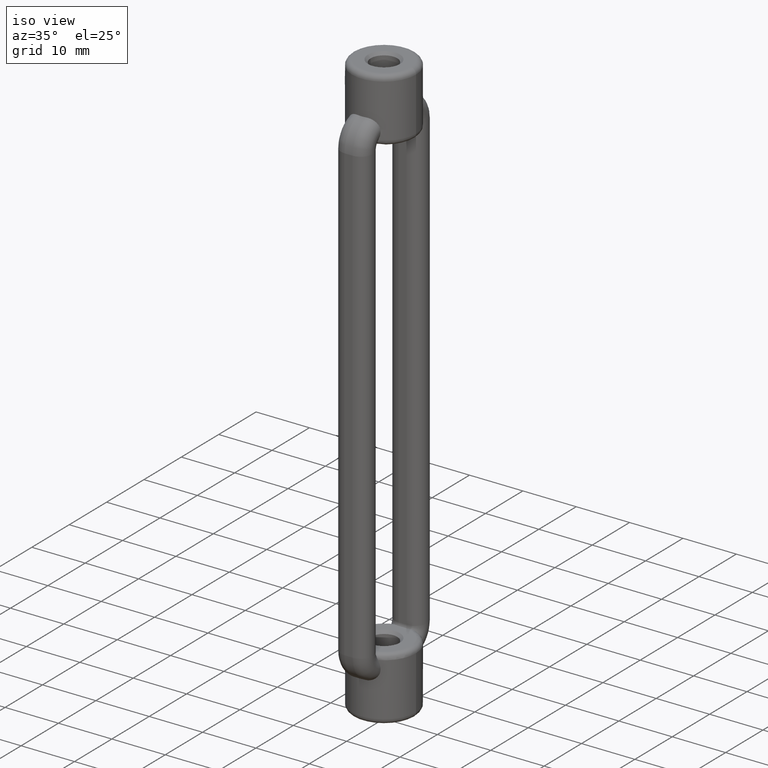
[diagram: clean part render]
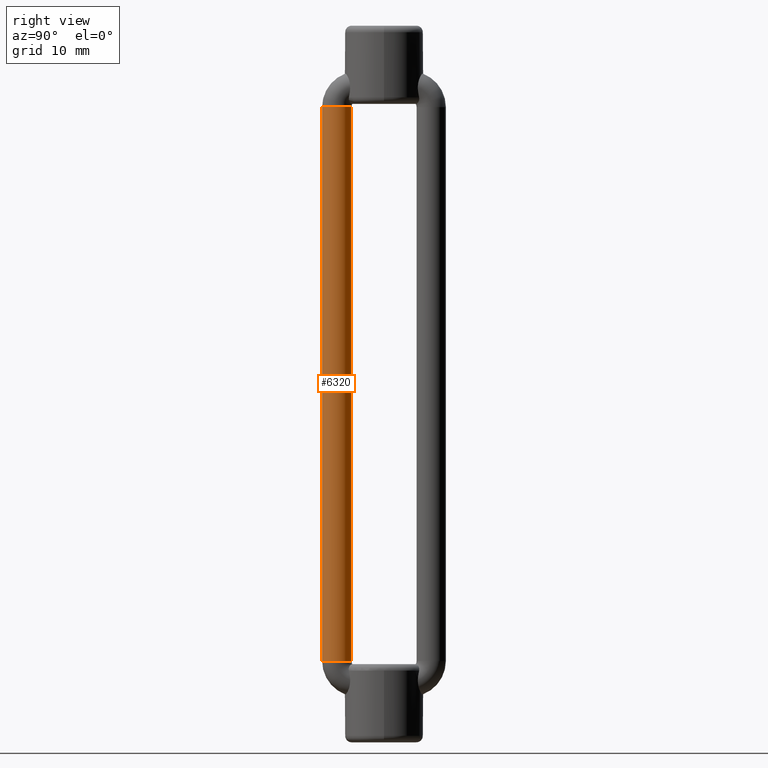
[diagram: tour spotlight — one face highlighted and labeled with its STEP entity id]
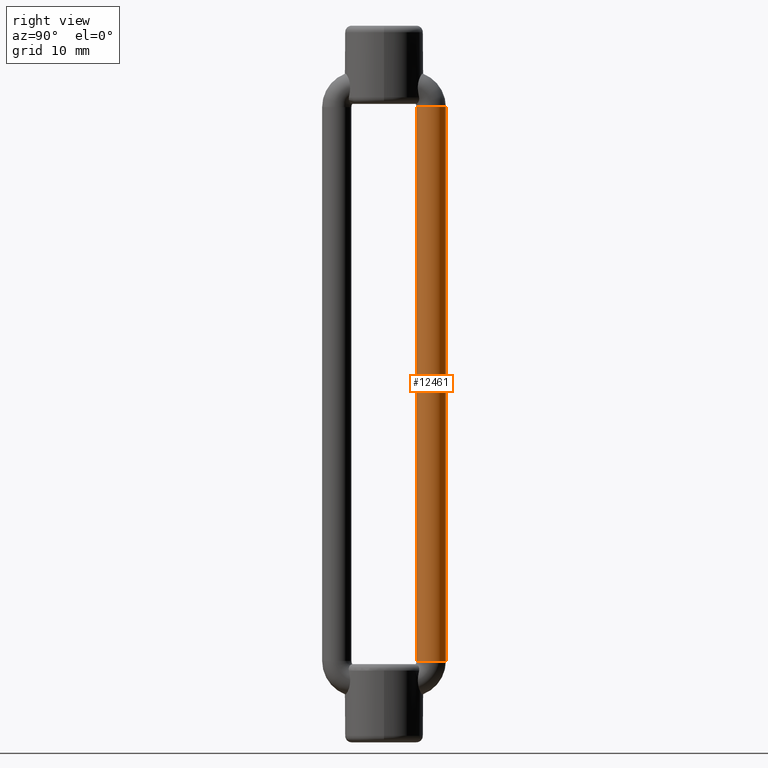
[diagram: tour spotlight — one face highlighted and labeled with its STEP entity id]
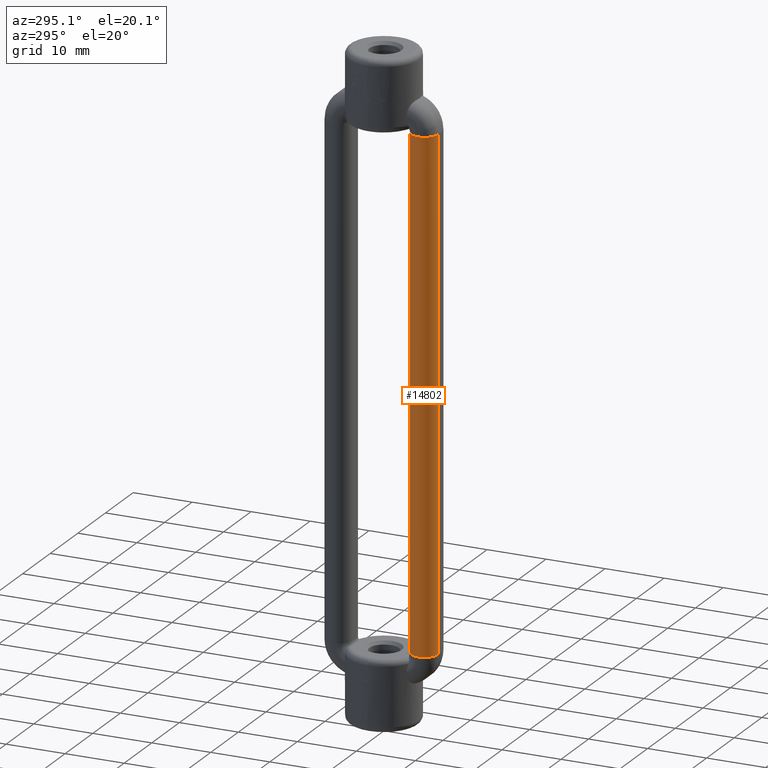
[diagram: tour spotlight — one face highlighted and labeled with its STEP entity id]
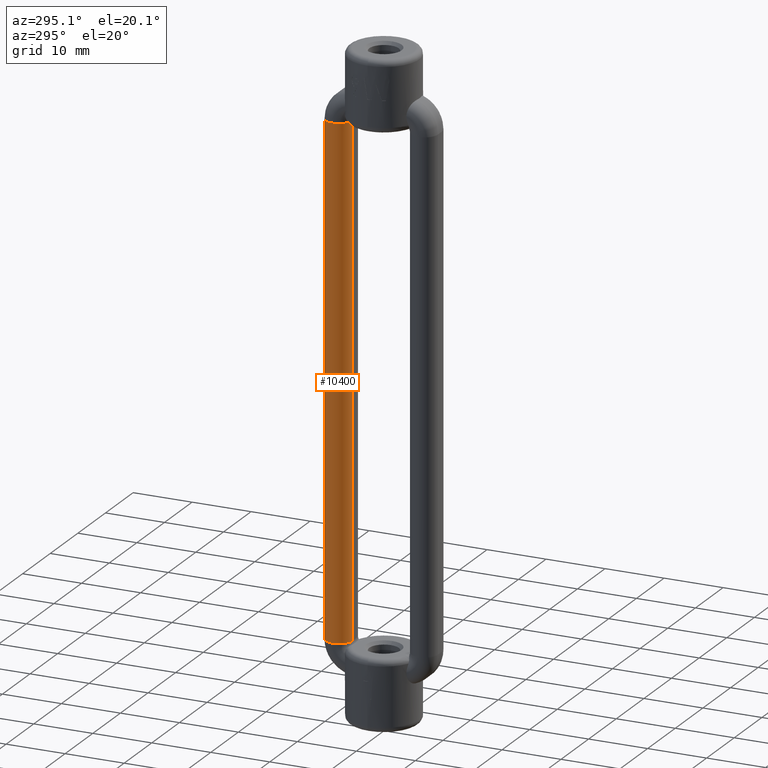
[diagram: tour spotlight — one face highlighted and labeled with its STEP entity id]
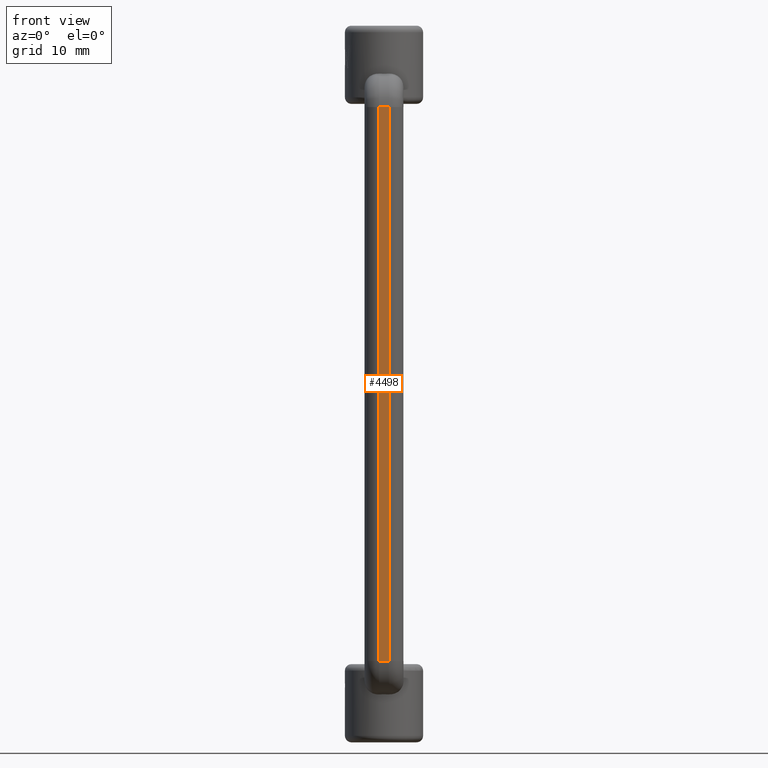
[diagram: tour spotlight — one face highlighted and labeled with its STEP entity id]
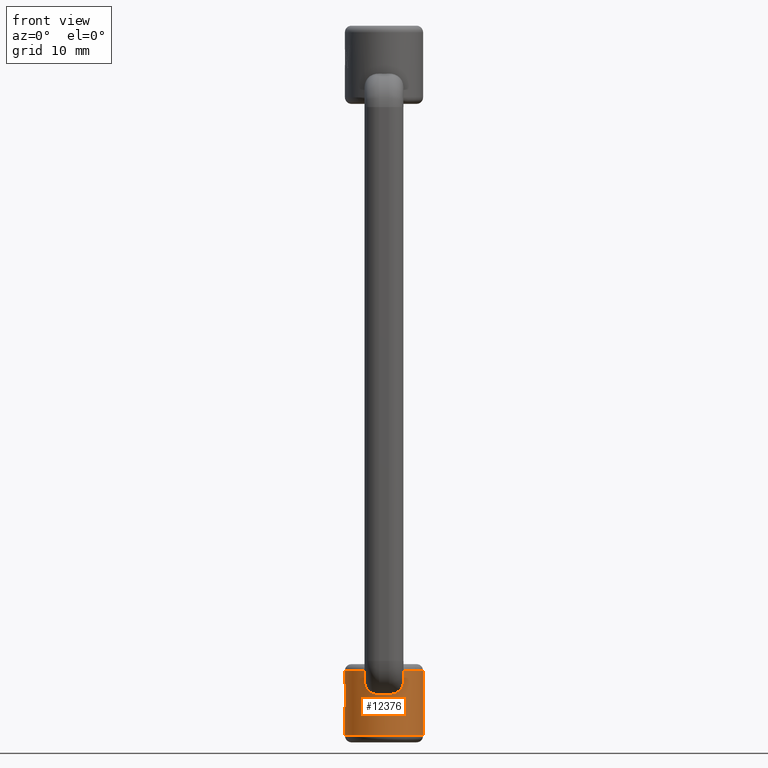
[diagram: tour spotlight — one face highlighted and labeled with its STEP entity id]
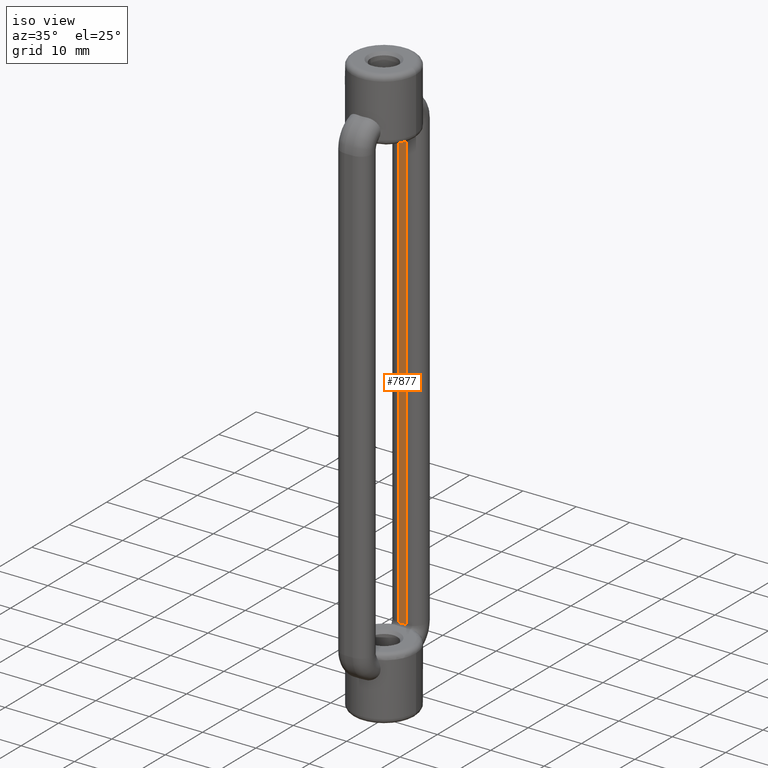
[diagram: tour spotlight — one face highlighted and labeled with its STEP entity id]
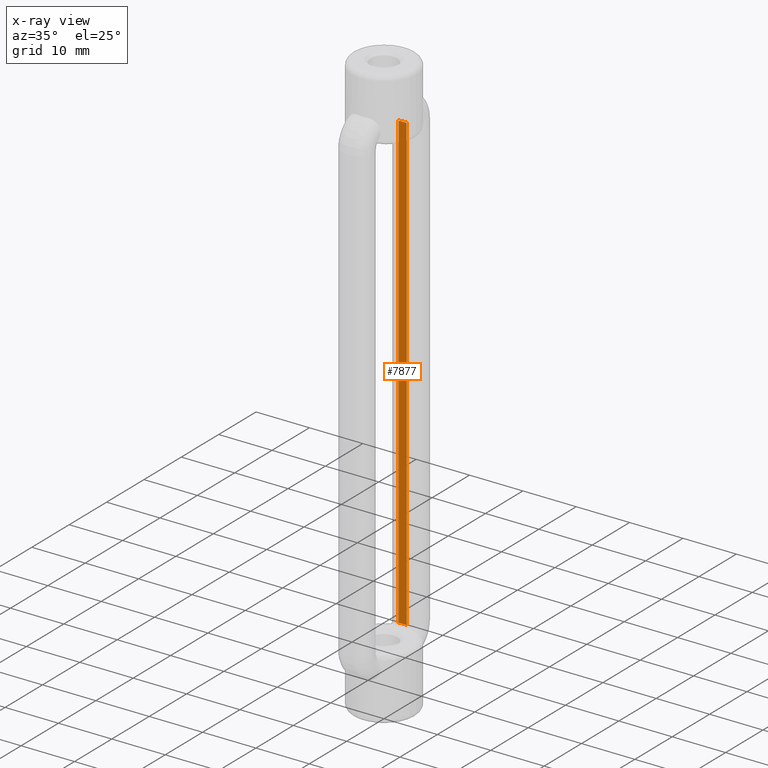
[diagram: x-ray of the same camera — body ghosted, this tour face saturated]
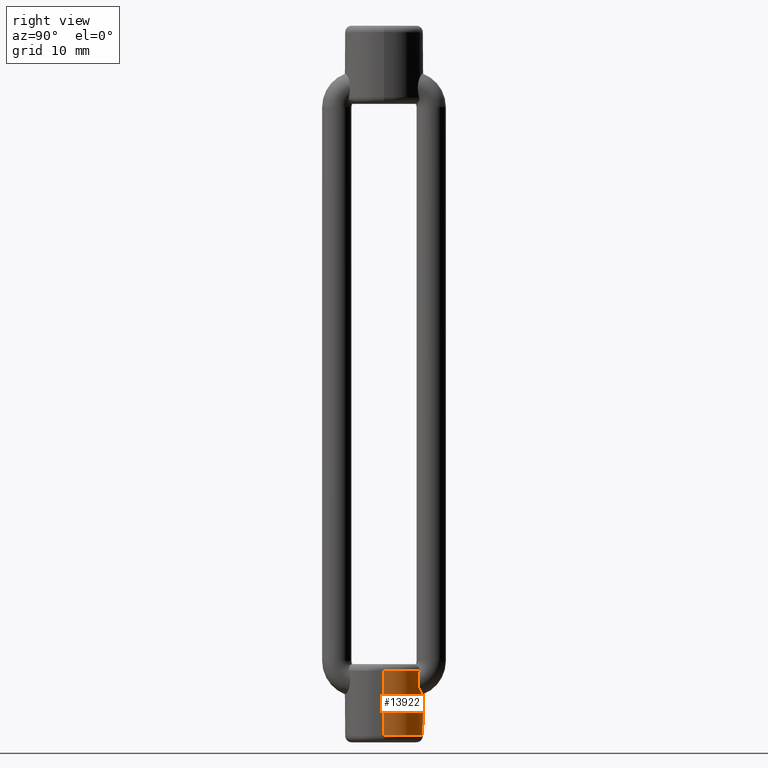
[diagram: tour spotlight — one face highlighted and labeled with its STEP entity id]
A machine part: a face-by-face anatomy tour. The part has 307 B-rep faces; the first image is the clean iso view, then the 8 largest visible faces are spotlighted one at a time (largest first), each with its STEP entity span.

Face 1 — right view, entity #6320. In plain terms, the highlighted cylindrical surface (edge-blend (fillet) strip) has radius 2.25 mm, axis along (0, -0, -1).
Definition (entity closure, byte-faithful):
#143 = CARTESIAN_POINT ( 'NONE',  ( 0.7499999999999981100, -7.249999999999999100, 42.49999999999998600 ) ) ;
#219 = EDGE_CURVE ( 'NONE', #14377, #6254, #14173, .T. ) ;
#794 = CARTESIAN_POINT ( 'NONE',  ( 0.7499999999999981100, -9.500000000000001800, 42.49999999999998600 ) ) ;
#992 = DIRECTION ( 'NONE',  ( -0.0000000000000000000, 6.123233995736766000E-017, 1.000000000000000000 ) ) ;
#1090 = VERTEX_POINT ( 'NONE', #2049 ) ;
#1890 = CYLINDRICAL_SURFACE ( 'NONE', #15177, 2.250000000000001800 ) ;
#2049 = CARTESIAN_POINT ( 'NONE',  ( 0.7499999999999981100, -9.500000000000001800, -42.50000000000001400 ) ) ;
#2493 = CIRCLE ( 'NONE', #16723, 2.250000000000001800 ) ;
#2561 = CARTESIAN_POINT ( 'NONE',  ( 0.7499999999999981100, -4.999999999999997300, 42.49999999999998600 ) ) ;
#2956 = CARTESIAN_POINT ( 'NONE',  ( 0.7499999999999981100, -9.500000000000001800, 42.49999999999998600 ) ) ;
#3449 = CARTESIAN_POINT ( 'NONE',  ( 0.7499999999999981100, -4.999999999999997300, 42.49999999999998600 ) ) ;
#3880 = ORIENTED_EDGE ( 'NONE', *, *, #5292, .T. ) ;
#4096 = CARTESIAN_POINT ( 'NONE',  ( 0.7499999999999981100, -7.249999999999999100, 42.49999999999998600 ) ) ;
#4803 = VECTOR ( 'NONE', #15546, 1000.000000000000000 ) ;
#5164 = AXIS2_PLACEMENT_3D ( 'NONE', #7775, #992, #9009 ) ;
#5292 = EDGE_CURVE ( 'NONE', #6303, #1090, #7451, .T. ) ;
#5465 = CIRCLE ( 'NONE', #5164, 2.250000000000001300 ) ;
#5547 = ORIENTED_EDGE ( 'NONE', *, *, #7184, .F. ) ;
#6139 = VECTOR ( 'NONE', #16585, 1000.000000000000000 ) ;
#6254 = VERTEX_POINT ( 'NONE', #16137 ) ;
#6303 = VERTEX_POINT ( 'NONE', #2956 ) ;
#6320 = ADVANCED_FACE ( 'NONE', ( #12594 ), #1890, .T. ) ;
#7184 = EDGE_CURVE ( 'NONE', #6303, #14377, #2493, .T. ) ;
#7451 = LINE ( 'NONE', #794, #4803 ) ;
#7775 = CARTESIAN_POINT ( 'NONE',  ( 0.7499999999999981100, -7.250000000000000000, -42.50000000000001400 ) ) ;
#9009 = DIRECTION ( 'NONE',  ( 0.0000000000000000000, -1.000000000000000000, 0.0000000000000000000 ) ) ;
#9293 = DIRECTION ( 'NONE',  ( 0.0000000000000000000, -1.020425574104004100E-017, -1.000000000000000000 ) ) ;
#9355 = DIRECTION ( 'NONE',  ( 0.0000000000000000000, 1.000000000000000000, 0.0000000000000000000 ) ) ;
#10760 = EDGE_CURVE ( 'NONE', #1090, #6254, #5465, .T. ) ;
#11179 = EDGE_LOOP ( 'NONE', ( #5547, #3880, #14057, #15784 ) ) ;
#12594 = FACE_OUTER_BOUND ( 'NONE', #11179, .T. ) ;
#14057 = ORIENTED_EDGE ( 'NONE', *, *, #10760, .T. ) ;
#14173 = LINE ( 'NONE', #3449, #6139 ) ;
#14377 = VERTEX_POINT ( 'NONE', #2561 ) ;
#14405 = DIRECTION ( 'NONE',  ( -0.0000000000000000000, 6.123233995736766000E-017, 1.000000000000000000 ) ) ;
#15177 = AXIS2_PLACEMENT_3D ( 'NONE', #143, #9293, #9355 ) ;
#15546 = DIRECTION ( 'NONE',  ( 0.0000000000000000000, -1.020425574104004100E-017, -1.000000000000000000 ) ) ;
#15784 = ORIENTED_EDGE ( 'NONE', *, *, #219, .F. ) ;
#15898 = DIRECTION ( 'NONE',  ( 0.0000000000000000000, -1.000000000000000000, 0.0000000000000000000 ) ) ;
#16137 = CARTESIAN_POINT ( 'NONE',  ( 0.7499999999999981100, -4.999999999999998200, -42.50000000000001400 ) ) ;
#16585 = DIRECTION ( 'NONE',  ( 0.0000000000000000000, -1.020425574104004100E-017, -1.000000000000000000 ) ) ;
#16723 = AXIS2_PLACEMENT_3D ( 'NONE', #4096, #14405, #15898 ) ;

Face 2 — right view, entity #12461. In plain terms, the highlighted cylindrical surface (edge-blend (fillet) strip) has radius 2.25 mm, axis along (0, 0, -1).
Definition (entity closure, byte-faithful):
#499 = EDGE_CURVE ( 'NONE', #9583, #5878, #15202, .T. ) ;
#752 = DIRECTION ( 'NONE',  ( 0.0000000000000000000, 1.000000000000000000, 0.0000000000000000000 ) ) ;
#1118 = EDGE_LOOP ( 'NONE', ( #4959, #8501, #14960, #11738 ) ) ;
#1720 = CIRCLE ( 'NONE', #16198, 2.250000000000001300 ) ;
#2112 = VERTEX_POINT ( 'NONE', #13164 ) ;
#2143 = CARTESIAN_POINT ( 'NONE',  ( 0.7499999999999981100, 4.999999999999997300, 42.49999999999998600 ) ) ;
#3188 = VECTOR ( 'NONE', #12820, 1000.000000000000000 ) ;
#3803 = LINE ( 'NONE', #12707, #3188 ) ;
#4051 = CARTESIAN_POINT ( 'NONE',  ( 0.7499999999999981100, 7.249999999999999100, 42.49999999999998600 ) ) ;
#4162 = DIRECTION ( 'NONE',  ( 0.0000000000000000000, 1.000000000000000000, 0.0000000000000000000 ) ) ;
#4210 = CARTESIAN_POINT ( 'NONE',  ( 0.7499999999999981100, 4.999999999999997300, 42.49999999999998600 ) ) ;
#4694 = DIRECTION ( 'NONE',  ( 0.0000000000000000000, 1.020425574104004100E-017, -1.000000000000000000 ) ) ;
#4959 = ORIENTED_EDGE ( 'NONE', *, *, #499, .T. ) ;
#5029 = FACE_OUTER_BOUND ( 'NONE', #1118, .T. ) ;
#5415 = LINE ( 'NONE', #4210, #13860 ) ;
#5878 = VERTEX_POINT ( 'NONE', #2143 ) ;
#6850 = DIRECTION ( 'NONE',  ( 0.0000000000000000000, 6.123233995736766000E-017, -1.000000000000000000 ) ) ;
#7141 = AXIS2_PLACEMENT_3D ( 'NONE', #12547, #4694, #752 ) ;
#8123 = DIRECTION ( 'NONE',  ( 0.0000000000000000000, 6.123233995736766000E-017, -1.000000000000000000 ) ) ;
#8181 = DIRECTION ( 'NONE',  ( 0.0000000000000000000, 1.000000000000000000, 0.0000000000000000000 ) ) ;
#8501 = ORIENTED_EDGE ( 'NONE', *, *, #13271, .T. ) ;
#9583 = VERTEX_POINT ( 'NONE', #12779 ) ;
#9760 = CYLINDRICAL_SURFACE ( 'NONE', #7141, 2.250000000000001800 ) ;
#11410 = EDGE_CURVE ( 'NONE', #9583, #12979, #3803, .T. ) ;
#11738 = ORIENTED_EDGE ( 'NONE', *, *, #11410, .F. ) ;
#11913 = CARTESIAN_POINT ( 'NONE',  ( 0.7499999999999981100, 7.250000000000000000, -42.50000000000001400 ) ) ;
#12160 = AXIS2_PLACEMENT_3D ( 'NONE', #4051, #8123, #8181 ) ;
#12247 = EDGE_CURVE ( 'NONE', #12979, #2112, #1720, .T. ) ;
#12461 = ADVANCED_FACE ( 'NONE', ( #5029 ), #9760, .T. ) ;
#12547 = CARTESIAN_POINT ( 'NONE',  ( 0.7499999999999981100, 7.249999999999999100, 42.49999999999998600 ) ) ;
#12707 = CARTESIAN_POINT ( 'NONE',  ( 0.7499999999999981100, 9.500000000000001800, 42.49999999999998600 ) ) ;
#12779 = CARTESIAN_POINT ( 'NONE',  ( 0.7499999999999981100, 9.500000000000001800, 42.49999999999998600 ) ) ;
#12820 = DIRECTION ( 'NONE',  ( 0.0000000000000000000, 1.020425574104004100E-017, -1.000000000000000000 ) ) ;
#12979 = VERTEX_POINT ( 'NONE', #14288 ) ;
#13164 = CARTESIAN_POINT ( 'NONE',  ( 0.7499999999999981100, 4.999999999999998200, -42.50000000000001400 ) ) ;
#13271 = EDGE_CURVE ( 'NONE', #5878, #2112, #5415, .T. ) ;
#13860 = VECTOR ( 'NONE', #14737, 1000.000000000000000 ) ;
#14288 = CARTESIAN_POINT ( 'NONE',  ( 0.7499999999999981100, 9.500000000000001800, -42.50000000000001400 ) ) ;
#14737 = DIRECTION ( 'NONE',  ( 0.0000000000000000000, 1.020425574104004100E-017, -1.000000000000000000 ) ) ;
#14960 = ORIENTED_EDGE ( 'NONE', *, *, #12247, .F. ) ;
#15202 = CIRCLE ( 'NONE', #12160, 2.250000000000001800 ) ;
#16198 = AXIS2_PLACEMENT_3D ( 'NONE', #11913, #6850, #4162 ) ;

Face 3 — auxiliary view, entity #14802. In plain terms, the highlighted cylindrical surface (edge-blend (fillet) strip) has radius 2.25 mm, axis along (0, -0, -1).
Definition (entity closure, byte-faithful):
#91 = AXIS2_PLACEMENT_3D ( 'NONE', #14438, #5183, #1142 ) ;
#250 = DIRECTION ( 'NONE',  ( -0.0000000000000000000, 6.123233995736766000E-017, 1.000000000000000000 ) ) ;
#750 = EDGE_CURVE ( 'NONE', #2647, #10146, #5736, .T. ) ;
#1142 = DIRECTION ( 'NONE',  ( 0.0000000000000000000, -1.000000000000000000, 0.0000000000000000000 ) ) ;
#1306 = CARTESIAN_POINT ( 'NONE',  ( -0.7499999999999981100, -9.500000000000001800, 42.49999999999998600 ) ) ;
#1499 = CARTESIAN_POINT ( 'NONE',  ( -0.7499999999999981100, -4.999999999999997300, 42.49999999999998600 ) ) ;
#1647 = ORIENTED_EDGE ( 'NONE', *, *, #14543, .T. ) ;
#2370 = DIRECTION ( 'NONE',  ( 0.0000000000000000000, 1.000000000000000000, 0.0000000000000000000 ) ) ;
#2647 = VERTEX_POINT ( 'NONE', #1306 ) ;
#2685 = CARTESIAN_POINT ( 'NONE',  ( -0.7499999999999981100, -4.999999999999997300, 42.49999999999998600 ) ) ;
#3927 = EDGE_LOOP ( 'NONE', ( #12730, #7658, #1647, #4580 ) ) ;
#3998 = DIRECTION ( 'NONE',  ( 0.0000000000000000000, -1.000000000000000000, 0.0000000000000000000 ) ) ;
#4158 = CYLINDRICAL_SURFACE ( 'NONE', #14994, 2.250000000000001800 ) ;
#4580 = ORIENTED_EDGE ( 'NONE', *, *, #750, .F. ) ;
#5183 = DIRECTION ( 'NONE',  ( -0.0000000000000000000, 6.123233995736766000E-017, 1.000000000000000000 ) ) ;
#5506 = AXIS2_PLACEMENT_3D ( 'NONE', #8128, #250, #3998 ) ;
#5736 = LINE ( 'NONE', #7699, #12317 ) ;
#6407 = VECTOR ( 'NONE', #8231, 1000.000000000000000 ) ;
#6503 = DIRECTION ( 'NONE',  ( 0.0000000000000000000, -1.020425574104004100E-017, -1.000000000000000000 ) ) ;
#7254 = EDGE_CURVE ( 'NONE', #10513, #7867, #9915, .T. ) ;
#7658 = ORIENTED_EDGE ( 'NONE', *, *, #7254, .T. ) ;
#7699 = CARTESIAN_POINT ( 'NONE',  ( -0.7499999999999981100, -9.500000000000001800, 42.49999999999998600 ) ) ;
#7867 = VERTEX_POINT ( 'NONE', #12195 ) ;
#8128 = CARTESIAN_POINT ( 'NONE',  ( -0.7499999999999981100, -7.250000000000000000, -42.50000000000001400 ) ) ;
#8231 = DIRECTION ( 'NONE',  ( 0.0000000000000000000, -1.020425574104004100E-017, -1.000000000000000000 ) ) ;
#9915 = LINE ( 'NONE', #1499, #6407 ) ;
#10146 = VERTEX_POINT ( 'NONE', #16577 ) ;
#10513 = VERTEX_POINT ( 'NONE', #2685 ) ;
#11334 = EDGE_CURVE ( 'NONE', #10513, #2647, #13674, .T. ) ;
#12195 = CARTESIAN_POINT ( 'NONE',  ( -0.7499999999999981100, -4.999999999999998200, -42.50000000000001400 ) ) ;
#12317 = VECTOR ( 'NONE', #6503, 1000.000000000000000 ) ;
#12730 = ORIENTED_EDGE ( 'NONE', *, *, #11334, .F. ) ;
#12796 = FACE_OUTER_BOUND ( 'NONE', #3927, .T. ) ;
#13674 = CIRCLE ( 'NONE', #91, 2.250000000000001800 ) ;
#14233 = CARTESIAN_POINT ( 'NONE',  ( -0.7499999999999981100, -7.249999999999999100, 42.49999999999998600 ) ) ;
#14438 = CARTESIAN_POINT ( 'NONE',  ( -0.7499999999999981100, -7.249999999999999100, 42.49999999999998600 ) ) ;
#14543 = EDGE_CURVE ( 'NONE', #7867, #10146, #16715, .T. ) ;
#14802 = ADVANCED_FACE ( 'NONE', ( #12796 ), #4158, .T. ) ;
#14994 = AXIS2_PLACEMENT_3D ( 'NONE', #14233, #16763, #2370 ) ;
#16577 = CARTESIAN_POINT ( 'NONE',  ( -0.7499999999999981100, -9.500000000000001800, -42.50000000000001400 ) ) ;
#16715 = CIRCLE ( 'NONE', #5506, 2.250000000000001300 ) ;
#16763 = DIRECTION ( 'NONE',  ( 0.0000000000000000000, -1.020425574104004100E-017, -1.000000000000000000 ) ) ;

Face 4 — auxiliary view, entity #10400. In plain terms, the highlighted cylindrical surface (edge-blend (fillet) strip) has radius 2.25 mm, axis along (0, 0, -1).
Definition (entity closure, byte-faithful):
#1041 = ORIENTED_EDGE ( 'NONE', *, *, #10323, .T. ) ;
#1104 = CARTESIAN_POINT ( 'NONE',  ( -0.7499999999999981100, 4.999999999999997300, 42.49999999999998600 ) ) ;
#2215 = DIRECTION ( 'NONE',  ( 0.0000000000000000000, 1.000000000000000000, 0.0000000000000000000 ) ) ;
#2487 = DIRECTION ( 'NONE',  ( 0.0000000000000000000, 1.020425574104004100E-017, -1.000000000000000000 ) ) ;
#3254 = VERTEX_POINT ( 'NONE', #15789 ) ;
#3629 = EDGE_CURVE ( 'NONE', #8157, #8414, #5230, .T. ) ;
#3943 = AXIS2_PLACEMENT_3D ( 'NONE', #6262, #12996, #15470 ) ;
#4641 = LINE ( 'NONE', #1104, #16561 ) ;
#5230 = LINE ( 'NONE', #9773, #7879 ) ;
#5233 = DIRECTION ( 'NONE',  ( 0.0000000000000000000, 1.000000000000000000, 0.0000000000000000000 ) ) ;
#5664 = CIRCLE ( 'NONE', #3943, 2.250000000000001800 ) ;
#6185 = DIRECTION ( 'NONE',  ( 0.0000000000000000000, 6.123233995736766000E-017, -1.000000000000000000 ) ) ;
#6262 = CARTESIAN_POINT ( 'NONE',  ( -0.7499999999999981100, 7.249999999999999100, 42.49999999999998600 ) ) ;
#6876 = CARTESIAN_POINT ( 'NONE',  ( -0.7499999999999981100, 9.500000000000001800, -42.50000000000001400 ) ) ;
#7005 = EDGE_LOOP ( 'NONE', ( #1041, #9429, #12101, #14468 ) ) ;
#7879 = VECTOR ( 'NONE', #15133, 1000.000000000000000 ) ;
#8122 = CYLINDRICAL_SURFACE ( 'NONE', #16407, 2.250000000000001800 ) ;
#8157 = VERTEX_POINT ( 'NONE', #15198 ) ;
#8414 = VERTEX_POINT ( 'NONE', #6876 ) ;
#8530 = CARTESIAN_POINT ( 'NONE',  ( -0.7499999999999981100, 4.999999999999998200, -42.50000000000001400 ) ) ;
#8756 = CIRCLE ( 'NONE', #12026, 2.250000000000001300 ) ;
#9380 = FACE_OUTER_BOUND ( 'NONE', #7005, .T. ) ;
#9429 = ORIENTED_EDGE ( 'NONE', *, *, #3629, .T. ) ;
#9773 = CARTESIAN_POINT ( 'NONE',  ( -0.7499999999999981100, 9.500000000000001800, 42.49999999999998600 ) ) ;
#10088 = CARTESIAN_POINT ( 'NONE',  ( -0.7499999999999981100, 7.250000000000000000, -42.50000000000001400 ) ) ;
#10323 = EDGE_CURVE ( 'NONE', #3254, #8157, #5664, .T. ) ;
#10400 = ADVANCED_FACE ( 'NONE', ( #9380 ), #8122, .T. ) ;
#11135 = EDGE_CURVE ( 'NONE', #3254, #12822, #4641, .T. ) ;
#12026 = AXIS2_PLACEMENT_3D ( 'NONE', #10088, #6185, #2215 ) ;
#12101 = ORIENTED_EDGE ( 'NONE', *, *, #17004, .F. ) ;
#12822 = VERTEX_POINT ( 'NONE', #8530 ) ;
#12996 = DIRECTION ( 'NONE',  ( 0.0000000000000000000, 6.123233995736766000E-017, -1.000000000000000000 ) ) ;
#14208 = CARTESIAN_POINT ( 'NONE',  ( -0.7499999999999981100, 7.249999999999999100, 42.49999999999998600 ) ) ;
#14433 = DIRECTION ( 'NONE',  ( 0.0000000000000000000, 1.020425574104004100E-017, -1.000000000000000000 ) ) ;
#14468 = ORIENTED_EDGE ( 'NONE', *, *, #11135, .F. ) ;
#15133 = DIRECTION ( 'NONE',  ( 0.0000000000000000000, 1.020425574104004100E-017, -1.000000000000000000 ) ) ;
#15198 = CARTESIAN_POINT ( 'NONE',  ( -0.7499999999999981100, 9.500000000000001800, 42.49999999999998600 ) ) ;
#15470 = DIRECTION ( 'NONE',  ( 0.0000000000000000000, 1.000000000000000000, 0.0000000000000000000 ) ) ;
#15789 = CARTESIAN_POINT ( 'NONE',  ( -0.7499999999999981100, 4.999999999999997300, 42.49999999999998600 ) ) ;
#16407 = AXIS2_PLACEMENT_3D ( 'NONE', #14208, #14433, #5233 ) ;
#16561 = VECTOR ( 'NONE', #2487, 1000.000000000000000 ) ;
#17004 = EDGE_CURVE ( 'NONE', #12822, #8414, #8756, .T. ) ;

Face 5 — front view, entity #4498. In plain terms, the highlighted planar face has unit normal (0, 1, -0).
Definition (entity closure, byte-faithful):
#248 = CARTESIAN_POINT ( 'NONE',  ( -0.7499999999999981100, -9.500000000000001800, -42.50000000000001400 ) ) ;
#750 = EDGE_CURVE ( 'NONE', #2647, #10146, #5736, .T. ) ;
#794 = CARTESIAN_POINT ( 'NONE',  ( 0.7499999999999981100, -9.500000000000001800, 42.49999999999998600 ) ) ;
#1090 = VERTEX_POINT ( 'NONE', #2049 ) ;
#1149 = DIRECTION ( 'NONE',  ( 0.0000000000000000000, 1.020425574104004100E-017, 1.000000000000000000 ) ) ;
#1306 = CARTESIAN_POINT ( 'NONE',  ( -0.7499999999999981100, -9.500000000000001800, 42.49999999999998600 ) ) ;
#1391 = DIRECTION ( 'NONE',  ( 1.000000000000000000, 0.0000000000000000000, 0.0000000000000000000 ) ) ;
#1920 = ORIENTED_EDGE ( 'NONE', *, *, #3838, .T. ) ;
#2049 = CARTESIAN_POINT ( 'NONE',  ( 0.7499999999999981100, -9.500000000000001800, -42.50000000000001400 ) ) ;
#2647 = VERTEX_POINT ( 'NONE', #1306 ) ;
#2956 = CARTESIAN_POINT ( 'NONE',  ( 0.7499999999999981100, -9.500000000000001800, 42.49999999999998600 ) ) ;
#3564 = LINE ( 'NONE', #248, #14299 ) ;
#3838 = EDGE_CURVE ( 'NONE', #10146, #1090, #3564, .T. ) ;
#4197 = LINE ( 'NONE', #5716, #15321 ) ;
#4498 = ADVANCED_FACE ( 'NONE', ( #10772 ), #7704, .F. ) ;
#4803 = VECTOR ( 'NONE', #15546, 1000.000000000000000 ) ;
#5292 = EDGE_CURVE ( 'NONE', #6303, #1090, #7451, .T. ) ;
#5716 = CARTESIAN_POINT ( 'NONE',  ( -0.7499999999999981100, -9.500000000000001800, 42.49999999999998600 ) ) ;
#5736 = LINE ( 'NONE', #7699, #12317 ) ;
#6303 = VERTEX_POINT ( 'NONE', #2956 ) ;
#6503 = DIRECTION ( 'NONE',  ( 0.0000000000000000000, -1.020425574104004100E-017, -1.000000000000000000 ) ) ;
#7451 = LINE ( 'NONE', #794, #4803 ) ;
#7699 = CARTESIAN_POINT ( 'NONE',  ( -0.7499999999999981100, -9.500000000000001800, 42.49999999999998600 ) ) ;
#7704 = PLANE ( 'NONE',  #12607 ) ;
#9045 = CARTESIAN_POINT ( 'NONE',  ( -0.7499999999999981100, -9.500000000000001800, 42.49999999999998600 ) ) ;
#9102 = DIRECTION ( 'NONE',  ( 0.0000000000000000000, 1.000000000000000000, -1.020425574104004100E-017 ) ) ;
#9315 = ORIENTED_EDGE ( 'NONE', *, *, #5292, .F. ) ;
#10146 = VERTEX_POINT ( 'NONE', #16577 ) ;
#10772 = FACE_OUTER_BOUND ( 'NONE', #10828, .T. ) ;
#10828 = EDGE_LOOP ( 'NONE', ( #11554, #10995, #1920, #9315 ) ) ;
#10995 = ORIENTED_EDGE ( 'NONE', *, *, #750, .T. ) ;
#11554 = ORIENTED_EDGE ( 'NONE', *, *, #12341, .F. ) ;
#12317 = VECTOR ( 'NONE', #6503, 1000.000000000000000 ) ;
#12341 = EDGE_CURVE ( 'NONE', #2647, #6303, #4197, .T. ) ;
#12607 = AXIS2_PLACEMENT_3D ( 'NONE', #9045, #9102, #1149 ) ;
#13697 = DIRECTION ( 'NONE',  ( 1.000000000000000000, 0.0000000000000000000, 0.0000000000000000000 ) ) ;
#14299 = VECTOR ( 'NONE', #1391, 1000.000000000000000 ) ;
#15321 = VECTOR ( 'NONE', #13697, 1000.000000000000000 ) ;
#15546 = DIRECTION ( 'NONE',  ( 0.0000000000000000000, -1.020425574104004100E-017, -1.000000000000000000 ) ) ;
#16577 = CARTESIAN_POINT ( 'NONE',  ( -0.7499999999999981100, -9.500000000000001800, -42.50000000000001400 ) ) ;

Face 6 — front view, entity #12376. In plain terms, the highlighted cylindrical surface (partial cylindrical patch) has radius 6 mm, axis along (-0, -0, 1).
Definition (entity closure, byte-faithful):
#8 = CARTESIAN_POINT ( 'NONE',  ( -5.999328853187546600, -0.08974024354507249800, -49.50000000000000000 ) ) ;
#190 = VERTEX_POINT ( 'NONE', #14160 ) ;
#316 = CARTESIAN_POINT ( 'NONE',  ( 0.0000000000000000000, 8.766172331216892400E-017, -49.50000000000000000 ) ) ;
#420 = DIRECTION ( 'NONE',  ( -0.0000000000000000000, -0.0000000000000000000, 1.000000000000000000 ) ) ;
#494 = VERTEX_POINT ( 'NONE', #13346 ) ;
#518 = CARTESIAN_POINT ( 'NONE',  ( 3.006026016381829500, -5.192788520953061300, -45.65923896246285800 ) ) ;
#616 = AXIS2_PLACEMENT_3D ( 'NONE', #316, #12167, #6983 ) ;
#627 = CARTESIAN_POINT ( 'NONE',  ( -6.000000000000010700, 8.224498028005821500E-016, 43.00000000000000000 ) ) ;
#690 = CARTESIAN_POINT ( 'NONE',  ( 2.800668084158412600, -5.308986296945970000, -44.39628917197979500 ) ) ;
#702 = DIRECTION ( 'NONE',  ( -0.0000000000000000000, -0.0000000000000000000, 1.000000000000000000 ) ) ;
#798 = CARTESIAN_POINT ( 'NONE',  ( 0.0000000000000000000, 8.766172331216892400E-017, 43.00000000000000000 ) ) ;
#1190 = CARTESIAN_POINT ( 'NONE',  ( -2.583220519880366600, -5.415825609758907300, -46.83352028015512000 ) ) ;
#1193 = DIRECTION ( 'NONE',  ( 0.0000000000000000000, 0.0000000000000000000, -1.000000000000000000 ) ) ;
#1304 = DIRECTION ( 'NONE',  ( 0.0000000000000000000, 0.0000000000000000000, 1.000000000000000000 ) ) ;
#1520 = LINE ( 'NONE', #627, #11620 ) ;
#1638 = ORIENTED_EDGE ( 'NONE', *, *, #1774, .T. ) ;
#1774 = EDGE_CURVE ( 'NONE', #14914, #190, #1788, .T. ) ;
#1788 = LINE ( 'NONE', #5399, #14973 ) ;
#1958 = CARTESIAN_POINT ( 'NONE',  ( 2.139499387628916800, -5.608793237180061700, -47.26842114432392300 ) ) ;
#2024 = VERTEX_POINT ( 'NONE', #5790 ) ;
#2244 = CARTESIAN_POINT ( 'NONE',  ( -6.000000000000010700, 8.224498028005821500E-016, -44.00000000000000000 ) ) ;
#2271 = LINE ( 'NONE', #8582, #11741 ) ;
#2342 = CARTESIAN_POINT ( 'NONE',  ( -2.800019534227931500, -5.309305215520884000, -44.39460956904219600 ) ) ;
#2402 = CARTESIAN_POINT ( 'NONE',  ( -2.751915404549505300, -5.331932984584224000, -46.57028028939996000 ) ) ;
#2518 = CARTESIAN_POINT ( 'NONE',  ( -1.586965489537353100, -5.790106175979373000, -47.54096269680399400 ) ) ;
#2585 = CARTESIAN_POINT ( 'NONE',  ( 0.2492393047011115200, -6.000031626060848400, -47.62346303743009900 ) ) ;
#2642 = EDGE_CURVE ( 'NONE', #10503, #10966, #6880, .T. ) ;
#2843 = ORIENTED_EDGE ( 'NONE', *, *, #7472, .T. ) ;
#2881 = ORIENTED_EDGE ( 'NONE', *, *, #10024, .T. ) ;
#2892 = DIRECTION ( 'NONE',  ( -0.0000000000000000000, -0.0000000000000000000, 1.000000000000000000 ) ) ;
#3002 = ORIENTED_EDGE ( 'NONE', *, *, #6476, .F. ) ;
#3113 = CARTESIAN_POINT ( 'NONE',  ( 2.938385424700623400, -5.231505610362477300, -44.80068779011858700 ) ) ;
#3232 = CARTESIAN_POINT ( 'NONE',  ( 2.838942773329244900, -5.286108378085346600, -46.38542160063487100 ) ) ;
#3235 = CARTESIAN_POINT ( 'NONE',  ( 6.000000000000010700, 8.766172331216892400E-017, 43.00000000000000000 ) ) ;
#3659 = ORIENTED_EDGE ( 'NONE', *, *, #8706, .T. ) ;
#3737 = CARTESIAN_POINT ( 'NONE',  ( 0.0000000000000000000, 8.766172331216892400E-017, -44.00000000000000000 ) ) ;
#3914 = ORIENTED_EDGE ( 'NONE', *, *, #5030, .F. ) ;
#4517 = VERTEX_POINT ( 'NONE', #2244 ) ;
#4568 = LINE ( 'NONE', #3235, #13996 ) ;
#4639 = DIRECTION ( 'NONE',  ( 1.000000000000000000, 0.0000000000000000000, 0.0000000000000000000 ) ) ;
#4824 = LINE ( 'NONE', #12531, #11398 ) ;
#5030 = EDGE_CURVE ( 'NONE', #14914, #2024, #10332, .T. ) ;
#5146 = CARTESIAN_POINT ( 'NONE',  ( -2.647647802095497200, -5.384232639481601800, -44.00000000000000000 ) ) ;
#5240 = DIRECTION ( 'NONE',  ( -0.9928495050826117200, -0.1193727785435738000, 0.0000000000000000000 ) ) ;
#5399 = CARTESIAN_POINT ( 'NONE',  ( -5.999328853187545700, -0.08974024354507249800, -49.50000000000000000 ) ) ;
#5413 = VERTEX_POINT ( 'NONE', #5861 ) ;
#5426 = ORIENTED_EDGE ( 'NONE', *, *, #11608, .T. ) ;
#5466 = AXIS2_PLACEMENT_3D ( 'NONE', #3737, #1193, #9204 ) ;
#5505 = CARTESIAN_POINT ( 'NONE',  ( 0.7499999999999981100, -5.952940449895340400, -47.64159737816592600 ) ) ;
#5528 = CARTESIAN_POINT ( 'NONE',  ( 0.7499999999999981100, -5.952940449895340400, -47.64159737816592600 ) ) ;
#5672 = CARTESIAN_POINT ( 'NONE',  ( 0.0000000000000000000, 8.766172331216892400E-017, -46.62820512820513100 ) ) ;
#5790 = CARTESIAN_POINT ( 'NONE',  ( -5.957097030495680700, -0.7162366712614439700, -49.50000000000000000 ) ) ;
#5807 = DIRECTION ( 'NONE',  ( -1.000000000000000000, 0.0000000000000000000, 0.0000000000000000000 ) ) ;
#5861 = CARTESIAN_POINT ( 'NONE',  ( -6.000000000000010700, 8.224498028005821500E-016, -46.62820512820513100 ) ) ;
#6246 = CYLINDRICAL_SURFACE ( 'NONE', #10342, 6.000000000000010700 ) ;
#6259 = CARTESIAN_POINT ( 'NONE',  ( -2.307299012493393000, -5.540780342936116700, -47.13899643784972000 ) ) ;
#6314 = CARTESIAN_POINT ( 'NONE',  ( -1.783913712234234800, -5.731824556728941600, -47.46652278982666900 ) ) ;
#6369 = CARTESIAN_POINT ( 'NONE',  ( -3.006789111494903500, -5.192295254808551700, -45.43910314158555500 ) ) ;
#6428 = VERTEX_POINT ( 'NONE', #8854 ) ;
#6476 = EDGE_CURVE ( 'NONE', #8642, #8442, #15953, .T. ) ;
#6613 = EDGE_LOOP ( 'NONE', ( #16335, #7361, #2881, #15298, #11083, #3002, #15506, #3659, #9549, #2843, #5426, #3914, #1638, #16269 ) ) ;
#6699 = CIRCLE ( 'NONE', #8226, 6.000000000000010700 ) ;
#6759 = DIRECTION ( 'NONE',  ( 1.000000000000000000, 0.0000000000000000000, 0.0000000000000000000 ) ) ;
#6862 = DIRECTION ( 'NONE',  ( -0.9998881421979226600, -0.01495670725751207200, 0.0000000000000000000 ) ) ;
#6880 = CIRCLE ( 'NONE', #5466, 6.000000000000010700 ) ;
#6983 = DIRECTION ( 'NONE',  ( -0.9928495050826117200, -0.1193727785435738000, 0.0000000000000000000 ) ) ;
#7008 = CARTESIAN_POINT ( 'NONE',  ( -0.7499999999999981100, -5.952940449895340400, -47.64159737816592600 ) ) ;
#7158 = VERTEX_POINT ( 'NONE', #8877 ) ;
#7361 = ORIENTED_EDGE ( 'NONE', *, *, #11861, .T. ) ;
#7472 = EDGE_CURVE ( 'NONE', #7158, #6428, #14230, .T. ) ;
#7569 = CARTESIAN_POINT ( 'NONE',  ( -2.937398188807675700, -5.232067944592827800, -44.79533901303742700 ) ) ;
#7628 = CARTESIAN_POINT ( 'NONE',  ( -2.699534470347798800, -5.358797340173953900, -46.66224462245958900 ) ) ;
#7752 = EDGE_CURVE ( 'NONE', #494, #5413, #2271, .T. ) ;
#7796 = CARTESIAN_POINT ( 'NONE',  ( -3.006490657149723900, -5.192518729010240400, -45.65338916288285300 ) ) ;
#7995 = EDGE_CURVE ( 'NONE', #8442, #10966, #10218, .T. ) ;
#8226 = AXIS2_PLACEMENT_3D ( 'NONE', #8392, #13684, #5807 ) ;
#8233 = EDGE_CURVE ( 'NONE', #11116, #8642, #8422, .T. ) ;
#8346 = CARTESIAN_POINT ( 'NONE',  ( 2.647647802106268600, -5.384232639476304700, -44.00000000002788900 ) ) ;
#8392 = CARTESIAN_POINT ( 'NONE',  ( 0.0000000000000000000, 8.766172331216892400E-017, -44.00000000000000000 ) ) ;
#8422 = B_SPLINE_CURVE_WITH_KNOTS ( 'NONE', 3,
 ( #9083, #2342, #7569, #6369, #7796, #15597, #16801, #2402, #7628, #1190, #17035, #6259, #15468, #6314, #2518, #14330, #9147, #10168 ),
 .UNSPECIFIED., .F., .F.,
 ( 4, 2, 2, 2, 2, 2, 2, 2, 4 ),
 ( 2.166501582897853700E-007, 0.001282598035847492100, 0.001923788728692093300, 0.002564979421536694700, 0.002885574767958986500, 0.003206170114381278700, 0.003847360807225863600, 0.004488551500070448900, 0.005129742192915034300 ),
 .UNSPECIFIED. ) ;
#8442 = VERTEX_POINT ( 'NONE', #5505 ) ;
#8513 = CARTESIAN_POINT ( 'NONE',  ( 2.304958704570863500, -5.541730175539279400, -47.14079233761434300 ) ) ;
#8572 = CARTESIAN_POINT ( 'NONE',  ( 1.584637498169516200, -5.790787226706097400, -47.54182828196277200 ) ) ;
#8582 = CARTESIAN_POINT ( 'NONE',  ( -6.000000000000010700, 8.224498028005821500E-016, 43.00000000000000000 ) ) ;
#8642 = VERTEX_POINT ( 'NONE', #7008 ) ;
#8706 = EDGE_CURVE ( 'NONE', #11116, #4517, #6699, .T. ) ;
#8854 = CARTESIAN_POINT ( 'NONE',  ( -5.957097030495680700, -0.7162366712614439700, -46.00000000000000000 ) ) ;
#8877 = CARTESIAN_POINT ( 'NONE',  ( -6.000000000000010700, 8.224498028005821500E-016, -46.00000000000000000 ) ) ;
#9083 = CARTESIAN_POINT ( 'NONE',  ( -2.647647802095497200, -5.384232639481601800, -44.00000000000000000 ) ) ;
#9147 = CARTESIAN_POINT ( 'NONE',  ( -0.9650953604838102800, -5.925840981704809000, -47.65189060879236400 ) ) ;
#9204 = DIRECTION ( 'NONE',  ( -1.000000000000000000, 0.0000000000000000000, 0.0000000000000000000 ) ) ;
#9422 = CARTESIAN_POINT ( 'NONE',  ( 0.0000000000000000000, 8.766172331216892400E-017, -53.99999999999999300 ) ) ;
#9549 = ORIENTED_EDGE ( 'NONE', *, *, #11509, .F. ) ;
#9729 = CARTESIAN_POINT ( 'NONE',  ( 3.006750691557700700, -5.192315499144338100, -45.44067078651962500 ) ) ;
#9894 = CARTESIAN_POINT ( 'NONE',  ( 2.960064717899302700, -5.219035171798938500, -45.97723860831988700 ) ) ;
#10024 = EDGE_CURVE ( 'NONE', #12426, #10503, #4568, .T. ) ;
#10168 = CARTESIAN_POINT ( 'NONE',  ( -0.7499999999999981100, -5.952940449895340400, -47.64159737816592600 ) ) ;
#10218 = B_SPLINE_CURVE_WITH_KNOTS ( 'NONE', 3,
 ( #5528, #13511, #12430, #8572, #16404, #1958, #8513, #13624, #16288, #3232, #11001, #12486, #9894, #518, #9729, #3113, #690, #8346 ),
 .UNSPECIFIED., .F., .F.,
 ( 4, 2, 2, 2, 2, 2, 2, 2, 4 ),
 ( 1.989487527446714200E-007, 0.0006422322189873866700, 0.001284265489222028700, 0.001926298759456670600, 0.002568332029691312800, 0.002889348664808633800, 0.003210365299925954900, 0.003852398570160596600, 0.005136465110629880900 ),
 .UNSPECIFIED. ) ;
#10332 = CIRCLE ( 'NONE', #616, 6.000000000000010700 ) ;
#10342 = AXIS2_PLACEMENT_3D ( 'NONE', #798, #13982, #4639 ) ;
#10503 = VERTEX_POINT ( 'NONE', #15816 ) ;
#10545 = AXIS2_PLACEMENT_3D ( 'NONE', #16991, #15779, #5240 ) ;
#10841 = CARTESIAN_POINT ( 'NONE',  ( 2.647647802106268600, -5.384232639476304700, -44.00000000002788900 ) ) ;
#10966 = VERTEX_POINT ( 'NONE', #10841 ) ;
#11001 = CARTESIAN_POINT ( 'NONE',  ( 2.876389095795911700, -5.265699093877872300, -46.28729861659515900 ) ) ;
#11083 = ORIENTED_EDGE ( 'NONE', *, *, #7995, .F. ) ;
#11116 = VERTEX_POINT ( 'NONE', #5146 ) ;
#11398 = VECTOR ( 'NONE', #16282, 1000.000000000000000 ) ;
#11509 = EDGE_CURVE ( 'NONE', #7158, #4517, #1520, .T. ) ;
#11608 = EDGE_CURVE ( 'NONE', #6428, #2024, #4824, .T. ) ;
#11620 = VECTOR ( 'NONE', #2892, 1000.000000000000000 ) ;
#11741 = VECTOR ( 'NONE', #702, 1000.000000000000000 ) ;
#11861 = EDGE_CURVE ( 'NONE', #494, #12426, #14286, .T. ) ;
#12167 = DIRECTION ( 'NONE',  ( -0.0000000000000000000, -0.0000000000000000000, 1.000000000000000000 ) ) ;
#12314 = DIRECTION ( 'NONE',  ( -0.0000000000000000000, -0.0000000000000000000, 1.000000000000000000 ) ) ;
#12376 = ADVANCED_FACE ( 'NONE', ( #16345 ), #6246, .T. ) ;
#12426 = VERTEX_POINT ( 'NONE', #14040 ) ;
#12430 = CARTESIAN_POINT ( 'NONE',  ( 1.175002378234643000, -5.887585423306433100, -47.63384109583832800 ) ) ;
#12439 = AXIS2_PLACEMENT_3D ( 'NONE', #9422, #15981, #6759 ) ;
#12486 = CARTESIAN_POINT ( 'NONE',  ( 2.937028009426088100, -5.232118848948912800, -46.08331505877325900 ) ) ;
#12531 = CARTESIAN_POINT ( 'NONE',  ( -5.957097030495680700, -0.7162366712614439700, -46.00000000000000000 ) ) ;
#13001 = CARTESIAN_POINT ( 'NONE',  ( -0.7499999999999981100, -5.952940449895340400, -47.64159737816592600 ) ) ;
#13114 = CARTESIAN_POINT ( 'NONE',  ( -0.5005068938354695400, -5.984373626692309300, -47.62965806866335300 ) ) ;
#13346 = CARTESIAN_POINT ( 'NONE',  ( -6.000000000000010700, 8.224498028005821500E-016, -53.99999999999999300 ) ) ;
#13511 = CARTESIAN_POINT ( 'NONE',  ( 0.9651402668189635900, -5.925835324038241800, -47.65189275775176000 ) ) ;
#13624 = CARTESIAN_POINT ( 'NONE',  ( 2.585578421051069900, -5.416492610246474500, -46.84347446245406100 ) ) ;
#13684 = DIRECTION ( 'NONE',  ( 0.0000000000000000000, 0.0000000000000000000, -1.000000000000000000 ) ) ;
#13982 = DIRECTION ( 'NONE',  ( -0.0000000000000000000, -0.0000000000000000000, 1.000000000000000000 ) ) ;
#13992 = AXIS2_PLACEMENT_3D ( 'NONE', #5672, #420, #6862 ) ;
#13996 = VECTOR ( 'NONE', #12314, 1000.000000000000000 ) ;
#14040 = CARTESIAN_POINT ( 'NONE',  ( 6.000000000000010700, 8.766172331216892400E-017, -53.99999999999999300 ) ) ;
#14160 = CARTESIAN_POINT ( 'NONE',  ( -5.999328853187546600, -0.08974024354507251200, -46.62820512820513100 ) ) ;
#14230 = CIRCLE ( 'NONE', #10545, 6.000000000000010700 ) ;
#14286 = CIRCLE ( 'NONE', #12439, 6.000000000000010700 ) ;
#14330 = CARTESIAN_POINT ( 'NONE',  ( -1.179724464645113300, -5.886598269086722000, -47.63311720288319200 ) ) ;
#14496 = CARTESIAN_POINT ( 'NONE',  ( -0.2507596702374534400, -5.999968277626198400, -47.62348776612623200 ) ) ;
#14914 = VERTEX_POINT ( 'NONE', #8 ) ;
#14973 = VECTOR ( 'NONE', #1304, 1000.000000000000000 ) ;
#15298 = ORIENTED_EDGE ( 'NONE', *, *, #2642, .T. ) ;
#15468 = CARTESIAN_POINT ( 'NONE',  ( -2.143290492561871200, -5.607358268053869400, -47.26585826454375200 ) ) ;
#15506 = ORIENTED_EDGE ( 'NONE', *, *, #8233, .F. ) ;
#15597 = CARTESIAN_POINT ( 'NONE',  ( -2.945415158984750400, -5.227405318499184400, -46.08118356738100400 ) ) ;
#15714 = CARTESIAN_POINT ( 'NONE',  ( 0.7499999999999981100, -5.952940449895340400, -47.64159737816592600 ) ) ;
#15779 = DIRECTION ( 'NONE',  ( -0.0000000000000000000, -0.0000000000000000000, 1.000000000000000000 ) ) ;
#15816 = CARTESIAN_POINT ( 'NONE',  ( 6.000000000000010700, 8.766172331216892400E-017, -44.00000000000000000 ) ) ;
#15953 = B_SPLINE_CURVE_WITH_KNOTS ( 'NONE', 3,
 ( #13001, #13114, #14496, #2585, #16925, #15714 ),
 .UNSPECIFIED., .F., .F.,
 ( 4, 2, 4 ),
 ( 0.04533756081032076100, 0.04608664496407883400, 0.04683572911783690600 ),
 .UNSPECIFIED. ) ;
#15981 = DIRECTION ( 'NONE',  ( -0.0000000000000000000, -0.0000000000000000000, 1.000000000000000000 ) ) ;
#16193 = CIRCLE ( 'NONE', #13992, 6.000000000000010700 ) ;
#16269 = ORIENTED_EDGE ( 'NONE', *, *, #16387, .F. ) ;
#16282 = DIRECTION ( 'NONE',  ( 0.0000000000000000000, 0.0000000000000000000, -1.000000000000000000 ) ) ;
#16288 = CARTESIAN_POINT ( 'NONE',  ( 2.705202318169222400, -5.356494360883924200, -46.66855899342465400 ) ) ;
#16335 = ORIENTED_EDGE ( 'NONE', *, *, #7752, .F. ) ;
#16345 = FACE_OUTER_BOUND ( 'NONE', #6613, .T. ) ;
#16387 = EDGE_CURVE ( 'NONE', #5413, #190, #16193, .T. ) ;
#16404 = CARTESIAN_POINT ( 'NONE',  ( 1.780751197019349000, -5.732795511913491500, -47.46783385375082500 ) ) ;
#16801 = CARTESIAN_POINT ( 'NONE',  ( -2.885886852020091500, -5.261354204090057600, -46.28475913905558800 ) ) ;
#16925 = CARTESIAN_POINT ( 'NONE',  ( 0.4994910422642176400, -5.984501611960238800, -47.62960945583191100 ) ) ;
#16991 = CARTESIAN_POINT ( 'NONE',  ( 0.0000000000000000000, 8.766172331216892400E-017, -46.00000000000000000 ) ) ;
#17035 = CARTESIAN_POINT ( 'NONE',  ( -2.518899704307326500, -5.446201719094949200, -46.91376766499576700 ) ) ;

Face 7 — iso view, entity #7877. An x-ray twin of the same camera follows (body ghosted, this face saturated) — the face is partly hidden behind the body. In plain terms, the highlighted planar face has unit normal (0, -1, -0).
Definition (entity closure, byte-faithful):
#175 = CARTESIAN_POINT ( 'NONE',  ( -0.7499999999999981100, 4.999999999999997300, 42.49999999999998600 ) ) ;
#289 = DIRECTION ( 'NONE',  ( 0.0000000000000000000, 1.020425574104004100E-017, -1.000000000000000000 ) ) ;
#290 = AXIS2_PLACEMENT_3D ( 'NONE', #175, #8171, #289 ) ;
#836 = DIRECTION ( 'NONE',  ( -1.000000000000000000, -0.0000000000000000000, 0.0000000000000000000 ) ) ;
#1104 = CARTESIAN_POINT ( 'NONE',  ( -0.7499999999999981100, 4.999999999999997300, 42.49999999999998600 ) ) ;
#2112 = VERTEX_POINT ( 'NONE', #13164 ) ;
#2143 = CARTESIAN_POINT ( 'NONE',  ( 0.7499999999999981100, 4.999999999999997300, 42.49999999999998600 ) ) ;
#2333 = LINE ( 'NONE', #4780, #7273 ) ;
#2487 = DIRECTION ( 'NONE',  ( 0.0000000000000000000, 1.020425574104004100E-017, -1.000000000000000000 ) ) ;
#2661 = CARTESIAN_POINT ( 'NONE',  ( -0.7499999999999981100, 4.999999999999998200, -42.50000000000001400 ) ) ;
#3254 = VERTEX_POINT ( 'NONE', #15789 ) ;
#4210 = CARTESIAN_POINT ( 'NONE',  ( 0.7499999999999981100, 4.999999999999997300, 42.49999999999998600 ) ) ;
#4215 = PLANE ( 'NONE',  #290 ) ;
#4641 = LINE ( 'NONE', #1104, #16561 ) ;
#4780 = CARTESIAN_POINT ( 'NONE',  ( -0.7499999999999981100, 4.999999999999997300, 42.49999999999998600 ) ) ;
#4970 = FACE_OUTER_BOUND ( 'NONE', #10078, .T. ) ;
#5415 = LINE ( 'NONE', #4210, #13860 ) ;
#5878 = VERTEX_POINT ( 'NONE', #2143 ) ;
#6683 = LINE ( 'NONE', #2661, #8538 ) ;
#7273 = VECTOR ( 'NONE', #836, 1000.000000000000000 ) ;
#7397 = ORIENTED_EDGE ( 'NONE', *, *, #11135, .T. ) ;
#7877 = ADVANCED_FACE ( 'NONE', ( #4970 ), #4215, .T. ) ;
#8171 = DIRECTION ( 'NONE',  ( 0.0000000000000000000, -1.000000000000000000, -1.020425574104004100E-017 ) ) ;
#8530 = CARTESIAN_POINT ( 'NONE',  ( -0.7499999999999981100, 4.999999999999998200, -42.50000000000001400 ) ) ;
#8538 = VECTOR ( 'NONE', #15628, 1000.000000000000000 ) ;
#8921 = ORIENTED_EDGE ( 'NONE', *, *, #11666, .T. ) ;
#9353 = EDGE_CURVE ( 'NONE', #2112, #12822, #6683, .T. ) ;
#9394 = ORIENTED_EDGE ( 'NONE', *, *, #9353, .F. ) ;
#9676 = ORIENTED_EDGE ( 'NONE', *, *, #13271, .F. ) ;
#10078 = EDGE_LOOP ( 'NONE', ( #8921, #7397, #9394, #9676 ) ) ;
#11135 = EDGE_CURVE ( 'NONE', #3254, #12822, #4641, .T. ) ;
#11666 = EDGE_CURVE ( 'NONE', #5878, #3254, #2333, .T. ) ;
#12822 = VERTEX_POINT ( 'NONE', #8530 ) ;
#13164 = CARTESIAN_POINT ( 'NONE',  ( 0.7499999999999981100, 4.999999999999998200, -42.50000000000001400 ) ) ;
#13271 = EDGE_CURVE ( 'NONE', #5878, #2112, #5415, .T. ) ;
#13860 = VECTOR ( 'NONE', #14737, 1000.000000000000000 ) ;
#14737 = DIRECTION ( 'NONE',  ( 0.0000000000000000000, 1.020425574104004100E-017, -1.000000000000000000 ) ) ;
#15628 = DIRECTION ( 'NONE',  ( -1.000000000000000000, -0.0000000000000000000, 0.0000000000000000000 ) ) ;
#15789 = CARTESIAN_POINT ( 'NONE',  ( -0.7499999999999981100, 4.999999999999997300, 42.49999999999998600 ) ) ;
#16561 = VECTOR ( 'NONE', #2487, 1000.000000000000000 ) ;

Face 8 — right view, entity #13922. In plain terms, the highlighted cylindrical surface (partial cylindrical patch) has radius 6 mm, axis along (-0, -0, 1).
Definition (entity closure, byte-faithful):
#344 = CARTESIAN_POINT ( 'NONE',  ( 0.7499999999999981100, 5.952940449895340400, -47.64159737816592600 ) ) ;
#494 = VERTEX_POINT ( 'NONE', #13346 ) ;
#627 = CARTESIAN_POINT ( 'NONE',  ( -6.000000000000010700, 8.224498028005821500E-016, 43.00000000000000000 ) ) ;
#702 = DIRECTION ( 'NONE',  ( -0.0000000000000000000, -0.0000000000000000000, 1.000000000000000000 ) ) ;
#710 = CARTESIAN_POINT ( 'NONE',  ( -3.006026016382799900, 5.192788520952490200, -45.65923896244574800 ) ) ;
#762 = CARTESIAN_POINT ( 'NONE',  ( -1.175002378236742000, 5.887585423306050300, -47.63384109583815000 ) ) ;
#834 = EDGE_CURVE ( 'NONE', #5021, #1644, #16480, .T. ) ;
#863 = EDGE_CURVE ( 'NONE', #12426, #494, #15408, .T. ) ;
#1046 = DIRECTION ( 'NONE',  ( 0.0000000000000000000, 0.0000000000000000000, -1.000000000000000000 ) ) ;
#1102 = EDGE_CURVE ( 'NONE', #2476, #11645, #5721, .T. ) ;
#1139 = DIRECTION ( 'NONE',  ( -0.0000000000000000000, -0.0000000000000000000, 1.000000000000000000 ) ) ;
#1178 = ORIENTED_EDGE ( 'NONE', *, *, #6768, .T. ) ;
#1519 = DIRECTION ( 'NONE',  ( -0.9928495050826117200, -0.1193727785435738000, 0.0000000000000000000 ) ) ;
#1520 = LINE ( 'NONE', #627, #11620 ) ;
#1603 = CARTESIAN_POINT ( 'NONE',  ( 2.937398188807675700, 5.232067944592827800, -44.79533901303742700 ) ) ;
#1644 = VERTEX_POINT ( 'NONE', #4500 ) ;
#1956 = CIRCLE ( 'NONE', #9565, 6.000000000000010700 ) ;
#1963 = CARTESIAN_POINT ( 'NONE',  ( -5.933009100570256300, 0.8940934025875854100, -46.62820512820513100 ) ) ;
#2200 = CARTESIAN_POINT ( 'NONE',  ( 0.0000000000000000000, 8.766172331216892400E-017, -53.99999999999999300 ) ) ;
#2244 = CARTESIAN_POINT ( 'NONE',  ( -6.000000000000010700, 8.224498028005821500E-016, -44.00000000000000000 ) ) ;
#2271 = LINE ( 'NONE', #8582, #11741 ) ;
#2309 = ORIENTED_EDGE ( 'NONE', *, *, #11509, .T. ) ;
#2476 = VERTEX_POINT ( 'NONE', #1963 ) ;
#2583 = CARTESIAN_POINT ( 'NONE',  ( 0.0000000000000000000, 8.766172331216892400E-017, -46.62820512820513100 ) ) ;
#2591 = CARTESIAN_POINT ( 'NONE',  ( 2.518899704307326500, 5.446201719094949200, -46.91376766499576700 ) ) ;
#2892 = DIRECTION ( 'NONE',  ( -0.0000000000000000000, -0.0000000000000000000, 1.000000000000000000 ) ) ;
#2900 = ORIENTED_EDGE ( 'NONE', *, *, #863, .T. ) ;
#2901 = DIRECTION ( 'NONE',  ( -0.0000000000000000000, -0.0000000000000000000, 1.000000000000000000 ) ) ;
#2931 = CARTESIAN_POINT ( 'NONE',  ( 2.583220519880366600, 5.415825609758907300, -46.83352028015512000 ) ) ;
#3003 = CARTESIAN_POINT ( 'NONE',  ( 1.586965489537353100, 5.790106175979373000, -47.54096269680399400 ) ) ;
#3074 = ORIENTED_EDGE ( 'NONE', *, *, #834, .F. ) ;
#3235 = CARTESIAN_POINT ( 'NONE',  ( 6.000000000000010700, 8.766172331216892400E-017, 43.00000000000000000 ) ) ;
#3891 = CARTESIAN_POINT ( 'NONE',  ( 0.0000000000000000000, 8.766172331216892400E-017, -44.00000000000000000 ) ) ;
#4500 = CARTESIAN_POINT ( 'NONE',  ( -2.647647802106268600, 5.384232639476304700, -44.00000000000000000 ) ) ;
#4503 = CARTESIAN_POINT ( 'NONE',  ( -5.933009100570255400, 0.8940934025875865200, -46.00000000000000000 ) ) ;
#4517 = VERTEX_POINT ( 'NONE', #2244 ) ;
#4568 = LINE ( 'NONE', #3235, #13996 ) ;
#4648 = CARTESIAN_POINT ( 'NONE',  ( -0.9651402668200390600, 5.925835324038106800, -47.65189275775182400 ) ) ;
#5004 = DIRECTION ( 'NONE',  ( -0.0000000000000000000, -0.0000000000000000000, 1.000000000000000000 ) ) ;
#5021 = VERTEX_POINT ( 'NONE', #10506 ) ;
#5111 = CARTESIAN_POINT ( 'NONE',  ( 0.7499999999999981100, 5.952940449895340400, -47.64159737816592600 ) ) ;
#5190 = CARTESIAN_POINT ( 'NONE',  ( 3.006490657149723900, 5.192518729010240400, -45.65338916288285300 ) ) ;
#5413 = VERTEX_POINT ( 'NONE', #5861 ) ;
#5585 = CARTESIAN_POINT ( 'NONE',  ( 2.945415158984750400, 5.227405318499184400, -46.08118356738100400 ) ) ;
#5721 = LINE ( 'NONE', #12525, #14572 ) ;
#5861 = CARTESIAN_POINT ( 'NONE',  ( -6.000000000000010700, 8.224498028005821500E-016, -46.62820512820513100 ) ) ;
#5899 = CARTESIAN_POINT ( 'NONE',  ( -2.876389095800495200, 5.265699093875364900, -46.28729861658225500 ) ) ;
#6006 = CARTESIAN_POINT ( 'NONE',  ( -2.960064717902263400, 5.219035171797256300, -45.97723860830458900 ) ) ;
#6119 = CARTESIAN_POINT ( 'NONE',  ( -2.800668084150537600, 5.308986296950164900, -44.39628917195783900 ) ) ;
#6149 = B_SPLINE_CURVE_WITH_KNOTS ( 'NONE', 3,
 ( #5111, #6415, #14250, #6351, #7729, #15635 ),
 .UNSPECIFIED., .F., .F.,
 ( 4, 2, 4 ),
 ( 0.02225280933312100800, 0.02300359912622383300, 0.02375438891932665800 ),
 .UNSPECIFIED. ) ;
#6184 = CARTESIAN_POINT ( 'NONE',  ( 0.7499999999999981100, 5.952940449895340400, -47.64159737816592600 ) ) ;
#6351 = CARTESIAN_POINT ( 'NONE',  ( -0.2467301389833172200, 6.000139150529715700, -47.62342106420450700 ) ) ;
#6362 = ORIENTED_EDGE ( 'NONE', *, *, #10024, .F. ) ;
#6415 = CARTESIAN_POINT ( 'NONE',  ( 0.5023254682714783900, 5.984144507849529200, -47.62974509520842000 ) ) ;
#6721 = EDGE_CURVE ( 'NONE', #13087, #10503, #7420, .T. ) ;
#6768 = EDGE_CURVE ( 'NONE', #11645, #7158, #15269, .T. ) ;
#6887 = AXIS2_PLACEMENT_3D ( 'NONE', #10794, #2901, #1519 ) ;
#7061 = DIRECTION ( 'NONE',  ( 0.0000000000000000000, 0.0000000000000000000, 1.000000000000000000 ) ) ;
#7158 = VERTEX_POINT ( 'NONE', #8877 ) ;
#7213 = CARTESIAN_POINT ( 'NONE',  ( -3.006750691557126000, 5.192315499144679200, -45.44067078650115100 ) ) ;
#7328 = CARTESIAN_POINT ( 'NONE',  ( -2.585578421057412000, 5.416492610243446700, -46.84347446244593300 ) ) ;
#7376 = CARTESIAN_POINT ( 'NONE',  ( -2.647647802106268600, 5.384232639476304700, -44.00000000000000000 ) ) ;
#7420 = CIRCLE ( 'NONE', #14292, 6.000000000000010700 ) ;
#7424 = CARTESIAN_POINT ( 'NONE',  ( -2.139499387634906200, 5.608793237177798700, -47.26842114431989500 ) ) ;
#7729 = CARTESIAN_POINT ( 'NONE',  ( -0.4996251663170925300, 5.984484713917916900, -47.62961587424004500 ) ) ;
#7739 = CARTESIAN_POINT ( 'NONE',  ( 0.0000000000000000000, 8.766172331216892400E-017, 43.00000000000000000 ) ) ;
#7752 = EDGE_CURVE ( 'NONE', #494, #5413, #2271, .T. ) ;
#7808 = AXIS2_PLACEMENT_3D ( 'NONE', #2583, #1139, #11780 ) ;
#8224 = CARTESIAN_POINT ( 'NONE',  ( 1.783913712234234800, 5.731824556728941600, -47.46652278982666900 ) ) ;
#8284 = CARTESIAN_POINT ( 'NONE',  ( 2.307299012493393000, 5.540780342936116700, -47.13899643784972000 ) ) ;
#8351 = CIRCLE ( 'NONE', #7808, 6.000000000000010700 ) ;
#8582 = CARTESIAN_POINT ( 'NONE',  ( -6.000000000000010700, 8.224498028005821500E-016, 43.00000000000000000 ) ) ;
#8594 = CARTESIAN_POINT ( 'NONE',  ( -0.7499999999999981100, 5.952940449895340400, -47.64159737816592600 ) ) ;
#8790 = ORIENTED_EDGE ( 'NONE', *, *, #7752, .T. ) ;
#8877 = CARTESIAN_POINT ( 'NONE',  ( -6.000000000000010700, 8.224498028005821500E-016, -46.00000000000000000 ) ) ;
#8918 = ORIENTED_EDGE ( 'NONE', *, *, #1102, .T. ) ;
#9114 = ORIENTED_EDGE ( 'NONE', *, *, #12543, .F. ) ;
#9228 = EDGE_CURVE ( 'NONE', #4517, #1644, #1956, .T. ) ;
#9297 = DIRECTION ( 'NONE',  ( 0.0000000000000000000, 0.0000000000000000000, -1.000000000000000000 ) ) ;
#9500 = CARTESIAN_POINT ( 'NONE',  ( 2.800019534227931500, 5.309305215520884000, -44.39460956904219600 ) ) ;
#9565 = AXIS2_PLACEMENT_3D ( 'NONE', #12911, #1046, #15573 ) ;
#9976 = CARTESIAN_POINT ( 'NONE',  ( -2.838942773334240900, 5.286108378082659000, -46.38542160062279200 ) ) ;
#10024 = EDGE_CURVE ( 'NONE', #12426, #10503, #4568, .T. ) ;
#10222 = DIRECTION ( 'NONE',  ( 1.000000000000000000, 0.0000000000000000000, 0.0000000000000000000 ) ) ;
#10255 = DIRECTION ( 'NONE',  ( 1.000000000000000000, 0.0000000000000000000, 0.0000000000000000000 ) ) ;
#10503 = VERTEX_POINT ( 'NONE', #15816 ) ;
#10506 = CARTESIAN_POINT ( 'NONE',  ( -0.7499999999999981100, 5.952940449895340400, -47.64159737816592600 ) ) ;
#10732 = EDGE_LOOP ( 'NONE', ( #2900, #8790, #14615, #8918, #1178, #2309, #13429, #3074, #15304, #9114, #10973, #6362 ) ) ;
#10794 = CARTESIAN_POINT ( 'NONE',  ( 0.0000000000000000000, 8.766172331216892400E-017, -46.00000000000000000 ) ) ;
#10825 = CARTESIAN_POINT ( 'NONE',  ( 1.179724464645113300, 5.886598269086722000, -47.63311720288319200 ) ) ;
#10973 = ORIENTED_EDGE ( 'NONE', *, *, #6721, .T. ) ;
#11509 = EDGE_CURVE ( 'NONE', #7158, #4517, #1520, .T. ) ;
#11620 = VECTOR ( 'NONE', #2892, 1000.000000000000000 ) ;
#11645 = VERTEX_POINT ( 'NONE', #4503 ) ;
#11736 = CARTESIAN_POINT ( 'NONE',  ( 2.647647802095497200, 5.384232639481601800, -44.00000000000000000 ) ) ;
#11741 = VECTOR ( 'NONE', #702, 1000.000000000000000 ) ;
#11780 = DIRECTION ( 'NONE',  ( -0.9998881421979226600, -0.01495670725751207200, 0.0000000000000000000 ) ) ;
#11984 = CYLINDRICAL_SURFACE ( 'NONE', #15869, 6.000000000000010700 ) ;
#12054 = AXIS2_PLACEMENT_3D ( 'NONE', #2200, #13765, #10255 ) ;
#12136 = CARTESIAN_POINT ( 'NONE',  ( 0.9650953604838102800, 5.925840981704809000, -47.65189060879236400 ) ) ;
#12314 = DIRECTION ( 'NONE',  ( -0.0000000000000000000, -0.0000000000000000000, 1.000000000000000000 ) ) ;
#12426 = VERTEX_POINT ( 'NONE', #14040 ) ;
#12508 = CARTESIAN_POINT ( 'NONE',  ( -2.304958704577143400, 5.541730175536669000, -47.14079233760908500 ) ) ;
#12525 = CARTESIAN_POINT ( 'NONE',  ( -5.933009100570256300, 0.8940934025875854100, -46.62820512820513100 ) ) ;
#12543 = EDGE_CURVE ( 'NONE', #13087, #14200, #15821, .T. ) ;
#12558 = CARTESIAN_POINT ( 'NONE',  ( -2.705202318175270000, 5.356494360880856400, -46.66855899341487700 ) ) ;
#12611 = CARTESIAN_POINT ( 'NONE',  ( -1.780751197024116500, 5.732795511912032200, -47.46783385374886400 ) ) ;
#12911 = CARTESIAN_POINT ( 'NONE',  ( 0.0000000000000000000, 8.766172331216892400E-017, -44.00000000000000000 ) ) ;
#13087 = VERTEX_POINT ( 'NONE', #14508 ) ;
#13346 = CARTESIAN_POINT ( 'NONE',  ( -6.000000000000010700, 8.224498028005821500E-016, -53.99999999999999300 ) ) ;
#13429 = ORIENTED_EDGE ( 'NONE', *, *, #9228, .T. ) ;
#13765 = DIRECTION ( 'NONE',  ( -0.0000000000000000000, -0.0000000000000000000, 1.000000000000000000 ) ) ;
#13825 = CARTESIAN_POINT ( 'NONE',  ( -1.584637498173560300, 5.790787226705029800, -47.54182828196158500 ) ) ;
#13922 = ADVANCED_FACE ( 'NONE', ( #14037 ), #11984, .T. ) ;
#13996 = VECTOR ( 'NONE', #12314, 1000.000000000000000 ) ;
#14037 = FACE_OUTER_BOUND ( 'NONE', #10732, .T. ) ;
#14040 = CARTESIAN_POINT ( 'NONE',  ( 6.000000000000010700, 8.766172331216892400E-017, -53.99999999999999300 ) ) ;
#14200 = VERTEX_POINT ( 'NONE', #6184 ) ;
#14250 = CARTESIAN_POINT ( 'NONE',  ( 0.2534520981116368300, 5.999858966772885400, -47.62353043668470300 ) ) ;
#14292 = AXIS2_PLACEMENT_3D ( 'NONE', #3891, #9297, #14371 ) ;
#14371 = DIRECTION ( 'NONE',  ( -1.000000000000000000, 0.0000000000000000000, 0.0000000000000000000 ) ) ;
#14391 = CARTESIAN_POINT ( 'NONE',  ( 2.751915404549505300, 5.331932984584224000, -46.57028028939996000 ) ) ;
#14416 = EDGE_CURVE ( 'NONE', #14200, #5021, #6149, .T. ) ;
#14508 = CARTESIAN_POINT ( 'NONE',  ( 2.647647802095497200, 5.384232639481601800, -44.00000000000000000 ) ) ;
#14572 = VECTOR ( 'NONE', #7061, 1000.000000000000000 ) ;
#14615 = ORIENTED_EDGE ( 'NONE', *, *, #16705, .F. ) ;
#14797 = CARTESIAN_POINT ( 'NONE',  ( 2.143290492561871200, 5.607358268053869400, -47.26585826454375200 ) ) ;
#14854 = CARTESIAN_POINT ( 'NONE',  ( 2.885886852020091500, 5.261354204090057600, -46.28475913905558800 ) ) ;
#15269 = CIRCLE ( 'NONE', #6887, 6.000000000000010700 ) ;
#15304 = ORIENTED_EDGE ( 'NONE', *, *, #14416, .F. ) ;
#15408 = CIRCLE ( 'NONE', #12054, 6.000000000000010700 ) ;
#15573 = DIRECTION ( 'NONE',  ( -1.000000000000000000, 0.0000000000000000000, 0.0000000000000000000 ) ) ;
#15635 = CARTESIAN_POINT ( 'NONE',  ( -0.7499999999999981100, 5.952940449895340400, -47.64159737816592600 ) ) ;
#15723 = CARTESIAN_POINT ( 'NONE',  ( 2.699534470347798800, 5.358797340173953900, -46.66224462245958900 ) ) ;
#15816 = CARTESIAN_POINT ( 'NONE',  ( 6.000000000000010700, 8.766172331216892400E-017, -44.00000000000000000 ) ) ;
#15821 = B_SPLINE_CURVE_WITH_KNOTS ( 'NONE', 3,
 ( #11736, #9500, #1603, #16113, #5190, #5585, #14854, #14391, #15723, #2931, #2591, #8284, #14797, #8224, #3003, #10825, #12136, #344 ),
 .UNSPECIFIED., .F., .F.,
 ( 4, 2, 2, 2, 2, 2, 2, 2, 4 ),
 ( 2.166501582897853700E-007, 0.001282598035847492100, 0.001923788728692093300, 0.002564979421536694700, 0.002885574767958986500, 0.003206170114381278700, 0.003847360807225863600, 0.004488551500070448900, 0.005129742192915034300 ),
 .UNSPECIFIED. ) ;
#15869 = AXIS2_PLACEMENT_3D ( 'NONE', #7739, #5004, #10222 ) ;
#16113 = CARTESIAN_POINT ( 'NONE',  ( 3.006789111494903500, 5.192295254808551700, -45.43910314158555500 ) ) ;
#16427 = CARTESIAN_POINT ( 'NONE',  ( -2.938385424695624200, 5.231505610365320400, -44.80068779009796700 ) ) ;
#16480 = B_SPLINE_CURVE_WITH_KNOTS ( 'NONE', 3,
 ( #8594, #4648, #762, #13825, #12611, #7424, #12508, #7328, #12558, #9976, #5899, #16648, #6006, #710, #7213, #16427, #6119, #7376 ),
 .UNSPECIFIED., .F., .F.,
 ( 4, 2, 2, 2, 2, 2, 2, 2, 4 ),
 ( 1.989487527446714200E-007, 0.0006422322189905960200, 0.001284265489228447400, 0.001926298759466297300, 0.002568332029704147600, 0.002889348664823072800, 0.003210365299941997600, 0.003852398570179848600, 0.005136465110655549600 ),
 .UNSPECIFIED. ) ;
#16648 = CARTESIAN_POINT ( 'NONE',  ( -2.937028009429685200, 5.232118848946892200, -46.08331505875863600 ) ) ;
#16705 = EDGE_CURVE ( 'NONE', #2476, #5413, #8351, .T. ) ;